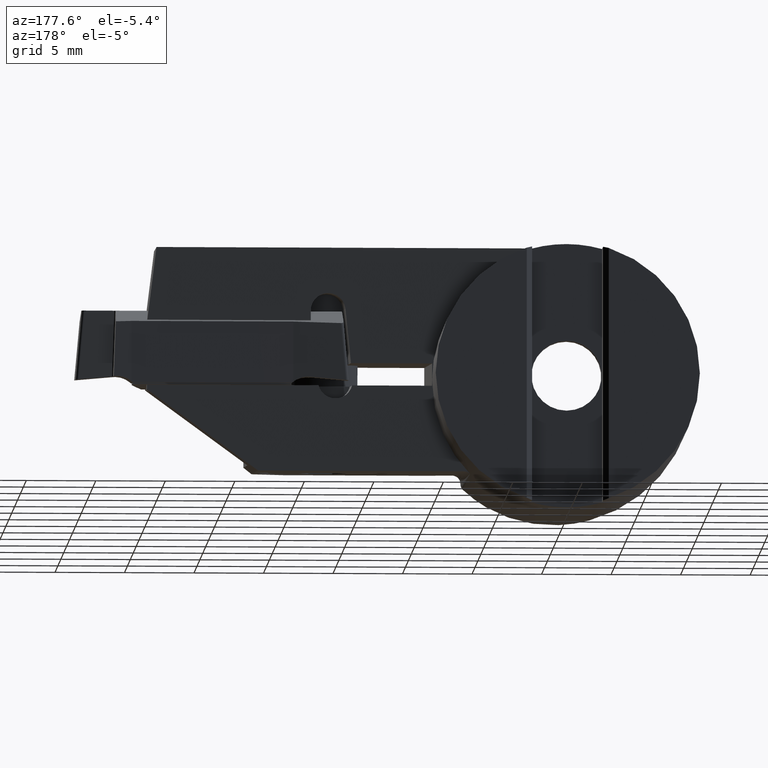
[diagram: clean part render]
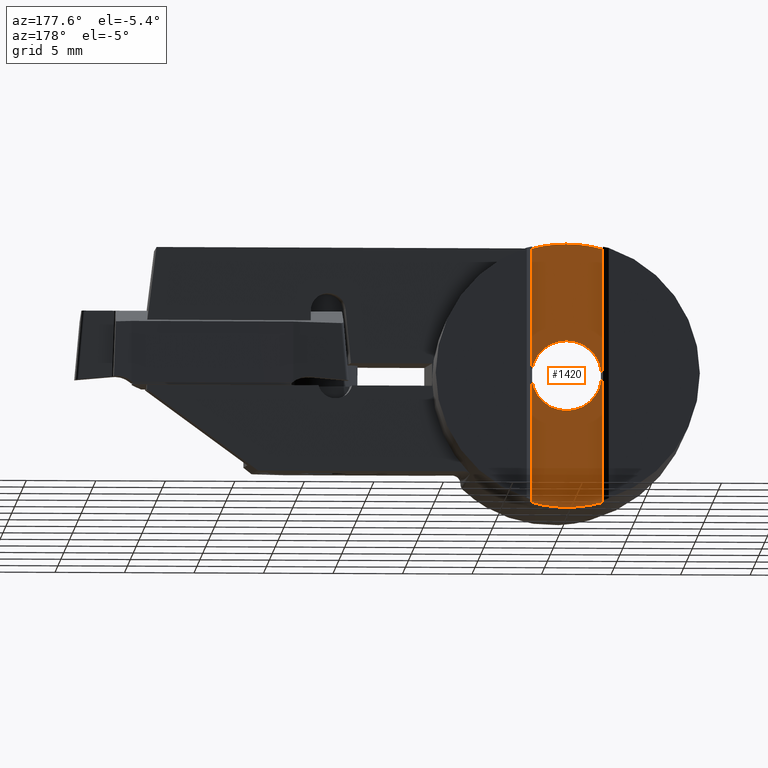
[diagram: same view with one face highlighted and labeled with its STEP entity id]
A machine part, auxiliary view. The second image highlights one B-rep face of the part: STEP entity #1420.
In plain terms, the highlighted planar face has unit normal (0, -1, 0).
Its self-contained STEP definition (entity closure, byte-faithful):
#762=VERTEX_POINT('NONE',#2181);
#822=EDGE_CURVE('NONE',#1630,#1346,#2246,.T.);
#844=EDGE_CURVE('NONE',#1766,#1220,#2272,.F.);
#988=EDGE_CURVE('NONE',#1220,#1766,#2427,.F.);
#1058=EDGE_CURVE('NONE',#1576,#1346,#2501,.F.);
#1220=VERTEX_POINT('NONE',#2680);
#1310=EDGE_CURVE('NONE',#762,#1926,#2782,.F.);
#1346=VERTEX_POINT('NONE',#2820);
#1420=ADVANCED_FACE('NONE',(#2901,#2902),#2903,.F.);
#1576=VERTEX_POINT('NONE',#3074);
#1612=EDGE_CURVE('NONE',#1926,#1576,#3112,.F.);
#1630=VERTEX_POINT('NONE',#3131);
#1766=VERTEX_POINT('NONE',#3283);
#1926=VERTEX_POINT('NONE',#3461);
#1954=EDGE_CURVE('NONE',#1630,#1958,#3494,.F.);
#1958=VERTEX_POINT('NONE',#3498);
#2030=EDGE_CURVE('NONE',#1958,#762,#3579,.F.);
#2181=CARTESIAN_POINT('',(-2.55,-2.15,9.15136601825105));
#2246=LINE('',#3931,#3932);
#2272=CIRCLE('',#3974,2.525);
#2427=CIRCLE('',#4210,2.525);
#2501=CIRCLE('',#4323,9.5);
#2680=CARTESIAN_POINT('',(0.0,-2.15,2.525));
#2782=LINE('',#4860,#4861);
#2820=CARTESIAN_POINT('',(2.55,-2.15,-9.15136601825104));
#2901=FACE_OUTER_BOUND('',#5074,.T.);
#2902=FACE_BOUND('',#5075,.T.);
#2903=PLANE('',#5076);
#3074=CARTESIAN_POINT('',(1.16337603613126E-015,-2.15,-9.5));
#3112=CIRCLE('',#5505,9.5);
#3131=CARTESIAN_POINT('',(2.55,-2.15,9.15136601825105));
#3283=CARTESIAN_POINT('',(3.0921310434015E-016,-2.15,-2.525));
#3461=CARTESIAN_POINT('',(-2.55,-2.15,-9.15136601825105));
#3494=CIRCLE('',#6272,9.5);
#3498=CARTESIAN_POINT('',(0.0,-2.15,9.5));
#3579=CIRCLE('',#6404,9.5);
#3931=CARTESIAN_POINT('',(2.55,-2.15,15.0));
#3932=VECTOR('',#6655,1.0);
#3974=AXIS2_PLACEMENT_3D('',#6686,#6687,#6688);
#4210=AXIS2_PLACEMENT_3D('',#6829,#6830,#6831);
#4323=AXIS2_PLACEMENT_3D('',#6890,#6891,#6892);
#4860=CARTESIAN_POINT('',(-2.55,-2.15,15.0));
#4861=VECTOR('',#7205,1.0);
#5074=EDGE_LOOP('',(#7336,#7337,#7338,#7339,#7340,#7341));
#5075=EDGE_LOOP('',(#7342,#7343));
#5076=AXIS2_PLACEMENT_3D('',#7344,#7345,#7346);
#5505=AXIS2_PLACEMENT_3D('',#7560,#7561,#7562);
#6272=AXIS2_PLACEMENT_3D('',#7983,#7984,#7985);
#6404=AXIS2_PLACEMENT_3D('',#8073,#8074,#8075);
#6655=DIRECTION('',(0.0,0.0,-1.0));
#6686=CARTESIAN_POINT('',(0.0,-2.15,0.0));
#6687=DIRECTION('',(-0.0,1.0,0.0));
#6688=DIRECTION('',(0.0,0.0,1.0));
#6829=CARTESIAN_POINT('',(0.0,-2.15,0.0));
#6830=DIRECTION('',(-0.0,1.0,0.0));
#6831=DIRECTION('',(0.0,0.0,1.0));
#6890=CARTESIAN_POINT('',(0.0,-2.15,0.0));
#6891=DIRECTION('',(-0.0,1.0,0.0));
#6892=DIRECTION('',(0.0,0.0,1.0));
#7205=DIRECTION('',(0.0,0.0,1.0));
#7336=ORIENTED_EDGE('',*,*,#822,.T.);
#7337=ORIENTED_EDGE('',*,*,#1058,.F.);
#7338=ORIENTED_EDGE('',*,*,#1612,.F.);
#7339=ORIENTED_EDGE('',*,*,#1310,.F.);
#7340=ORIENTED_EDGE('',*,*,#2030,.F.);
#7341=ORIENTED_EDGE('',*,*,#1954,.F.);
#7342=ORIENTED_EDGE('',*,*,#988,.T.);
#7343=ORIENTED_EDGE('',*,*,#844,.T.);
#7344=CARTESIAN_POINT('',(-2.55,-2.15,15.0));
#7345=DIRECTION('',(0.0,-1.0,0.0));
#7346=DIRECTION('',(1.0,0.0,0.0));
#7560=CARTESIAN_POINT('',(0.0,-2.15,0.0));
#7561=DIRECTION('',(-0.0,1.0,0.0));
#7562=DIRECTION('',(0.0,0.0,1.0));
#7983=CARTESIAN_POINT('',(0.0,-2.15,0.0));
#7984=DIRECTION('',(-0.0,1.0,0.0));
#7985=DIRECTION('',(0.0,0.0,1.0));
#8073=CARTESIAN_POINT('',(0.0,-2.15,0.0));
#8074=DIRECTION('',(-0.0,1.0,0.0));
#8075=DIRECTION('',(0.0,0.0,1.0));